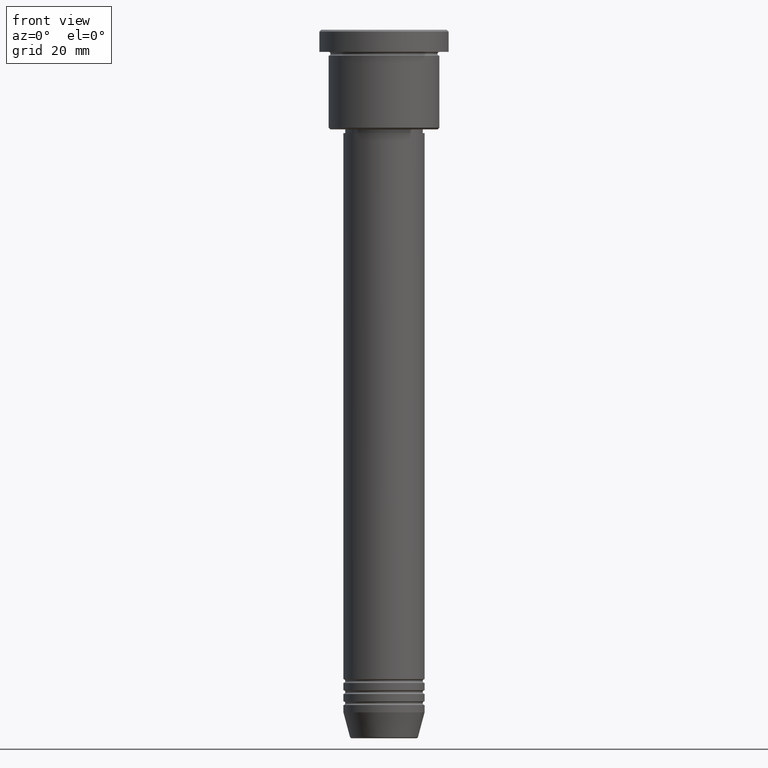
[diagram: clean part render]
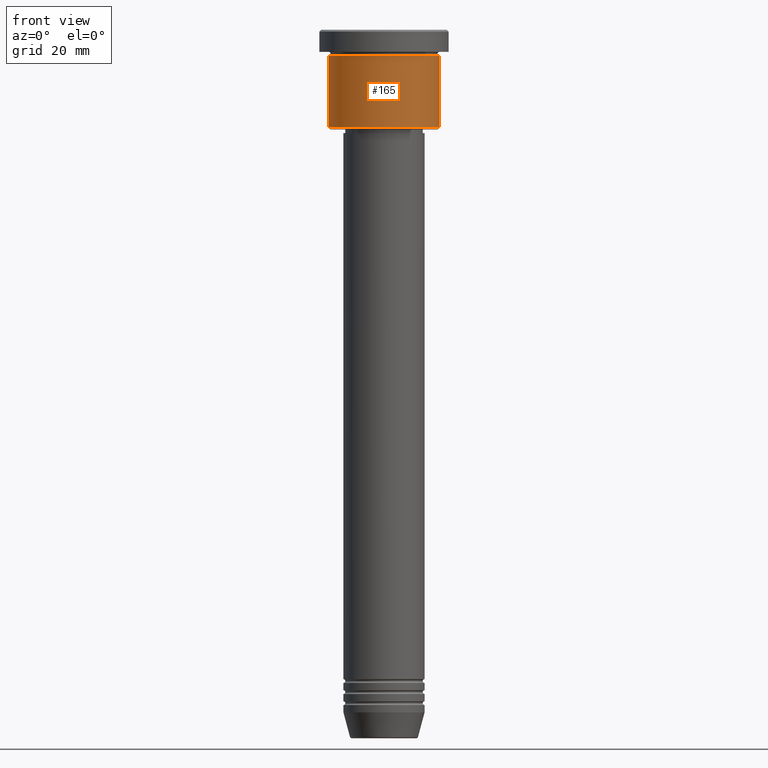
[diagram: same view with one face highlighted and labeled with its STEP entity id]
A machine part, front view. The second image highlights one B-rep face of the part: STEP entity #165.
In plain terms, the highlighted cylindrical surface (partial cylindrical patch) has radius 15 mm, axis along (-0, -0, 1).
Its self-contained STEP definition (entity closure, byte-faithful):
#54 = FACE_OUTER_BOUND ( 'NONE', #1018, .T. ) ;
#74 = CARTESIAN_POINT ( 'NONE',  ( 15.00000000000000000, 0.000000000000000000, 0.000000000000000000 ) ) ;
#142 = DIRECTION ( 'NONE',  ( -0.000000000000000000, -0.000000000000000000, 1.000000000000000000 ) ) ;
#148 = VECTOR ( 'NONE', #142, 1000.000000000000000 ) ;
#149 = VECTOR ( 'NONE', #459, 1000.000000000000000 ) ;
#165 = ADVANCED_FACE ( 'NONE', ( #54 ), #235, .T. ) ;
#191 = ORIENTED_EDGE ( 'NONE', *, *, #957, .T. ) ;
#214 = CARTESIAN_POINT ( 'NONE',  ( 15.00000000000000000, 0.000000000000000000, -26.49999999999997158 ) ) ;
#235 = CYLINDRICAL_SURFACE ( 'NONE', #961, 15.00000000000000000 ) ;
#270 = DIRECTION ( 'NONE',  ( -0.000000000000000000, -0.000000000000000000, 1.000000000000000000 ) ) ;
#285 = CARTESIAN_POINT ( 'NONE',  ( 0.000000000000000000, 0.000000000000000000, -26.49999999999997158 ) ) ;
#324 = DIRECTION ( 'NONE',  ( 1.000000000000000000, 0.000000000000000000, 0.000000000000000000 ) ) ;
#325 = ORIENTED_EDGE ( 'NONE', *, *, #1150, .F. ) ;
#393 = AXIS2_PLACEMENT_3D ( 'NONE', #998, #270, #799 ) ;
#413 = VERTEX_POINT ( 'NONE', #214 ) ;
#459 = DIRECTION ( 'NONE',  ( -0.000000000000000000, -0.000000000000000000, 1.000000000000000000 ) ) ;
#487 = ORIENTED_EDGE ( 'NONE', *, *, #1123, .T. ) ;
#507 = CARTESIAN_POINT ( 'NONE',  ( 0.000000000000000000, 0.000000000000000000, 0.000000000000000000 ) ) ;
#522 = CIRCLE ( 'NONE', #393, 15.00000000000000000 ) ;
#543 = AXIS2_PLACEMENT_3D ( 'NONE', #285, #764, #560 ) ;
#560 = DIRECTION ( 'NONE',  ( -1.000000000000000000, 0.000000000000000000, 0.000000000000000000 ) ) ;
#570 = EDGE_CURVE ( 'NONE', #933, #887, #589, .T. ) ;
#589 = LINE ( 'NONE', #1052, #148 ) ;
#702 = DIRECTION ( 'NONE',  ( -0.000000000000000000, -0.000000000000000000, 1.000000000000000000 ) ) ;
#764 = DIRECTION ( 'NONE',  ( -0.000000000000000000, -0.000000000000000000, 1.000000000000000000 ) ) ;
#799 = DIRECTION ( 'NONE',  ( 1.000000000000000000, 0.000000000000000000, 0.000000000000000000 ) ) ;
#832 = CARTESIAN_POINT ( 'NONE',  ( -15.00000000000000000, 1.836970198721029589E-15, -26.49999999999997158 ) ) ;
#838 = CARTESIAN_POINT ( 'NONE',  ( -15.00000000000000000, 1.836970198721029589E-15, -6.999999999999995559 ) ) ;
#887 = VERTEX_POINT ( 'NONE', #838 ) ;
#933 = VERTEX_POINT ( 'NONE', #832 ) ;
#957 = EDGE_CURVE ( 'NONE', #933, #413, #965, .T. ) ;
#961 = AXIS2_PLACEMENT_3D ( 'NONE', #507, #702, #324 ) ;
#965 = CIRCLE ( 'NONE', #543, 15.00000000000000000 ) ;
#973 = CARTESIAN_POINT ( 'NONE',  ( 15.00000000000000000, 0.000000000000000000, -6.999999999999995559 ) ) ;
#986 = ORIENTED_EDGE ( 'NONE', *, *, #570, .F. ) ;
#998 = CARTESIAN_POINT ( 'NONE',  ( 0.000000000000000000, 0.000000000000000000, -6.999999999999995559 ) ) ;
#1018 = EDGE_LOOP ( 'NONE', ( #986, #191, #487, #325 ) ) ;
#1052 = CARTESIAN_POINT ( 'NONE',  ( -15.00000000000000000, 1.836970198721029589E-15, 0.000000000000000000 ) ) ;
#1054 = VERTEX_POINT ( 'NONE', #973 ) ;
#1060 = LINE ( 'NONE', #74, #149 ) ;
#1123 = EDGE_CURVE ( 'NONE', #413, #1054, #1060, .T. ) ;
#1150 = EDGE_CURVE ( 'NONE', #887, #1054, #522, .T. ) ;